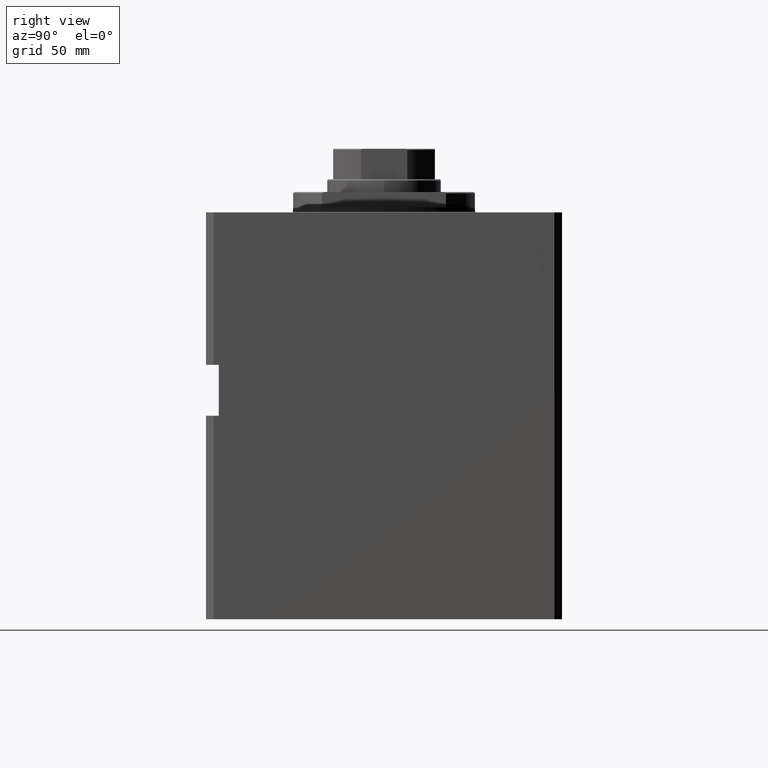
[diagram: clean part render]
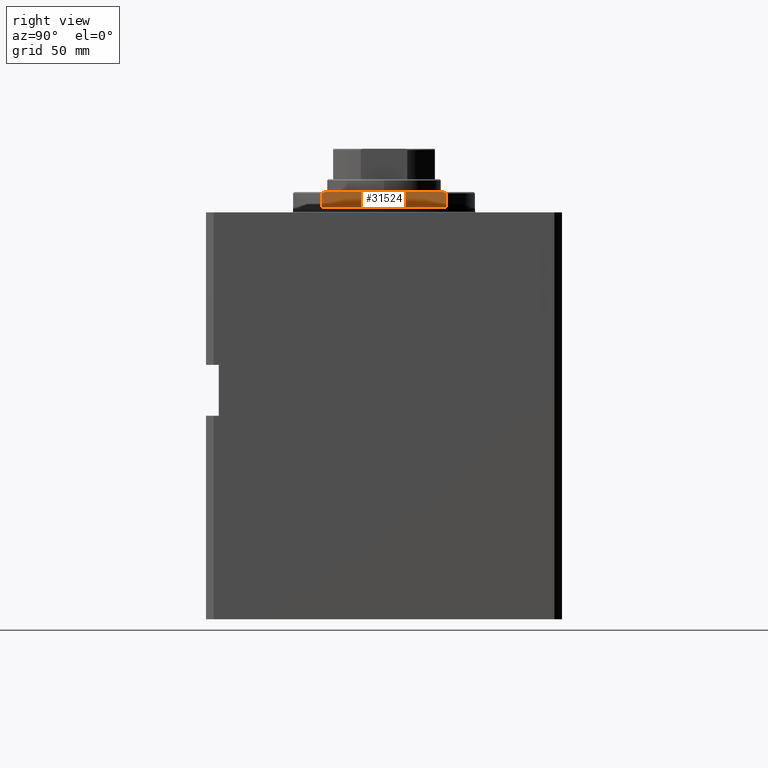
[diagram: same view with one face highlighted and labeled with its STEP entity id]
A machine part, right view. The second image highlights one B-rep face of the part: STEP entity #31524.
In plain terms, the highlighted planar face has unit normal (-1, 0, 0).
Its self-contained STEP definition (entity closure, byte-faithful):
#873 = CARTESIAN_POINT ( 'NONE',  ( -26.50000000000000000, 24.36698586202241046, -7.499999999999968026 ) ) ;
#1922 = VERTEX_POINT ( 'NONE', #5036 ) ;
#2016 = VECTOR ( 'NONE', #3955, 1000.000000000000000 ) ;
#2312 = LINE ( 'NONE', #9555, #36481 ) ;
#2525 = CARTESIAN_POINT ( 'NONE',  ( -26.50000000000000000, -36.36963018783666257, -8.000000000000000000 ) ) ;
#3313 = ORIENTED_EDGE ( 'NONE', *, *, #17429, .F. ) ;
#3955 = DIRECTION ( 'NONE',  ( -0.000000000000000000, -1.000000000000000000, -0.000000000000000000 ) ) ;
#5036 = CARTESIAN_POINT ( 'NONE',  ( -26.50000000000000000, -24.36698586202241046, -7.499999999999968026 ) ) ;
#5912 = CARTESIAN_POINT ( 'NONE',  ( -26.50000000000000000, 23.62202362203536765, -8.000000000000000000 ) ) ;
#7954 = EDGE_CURVE ( 'NONE', #45184, #42493, #16802, .T. ) ;
#8593 = EDGE_CURVE ( 'NONE', #24261, #12926, #22673, .T. ) ;
#9051 = LINE ( 'NONE', #27048, #38525 ) ;
#9555 = CARTESIAN_POINT ( 'NONE',  ( -26.50000000000000000, -24.36698586202240691, -8.000000000000000000 ) ) ;
#11268 = CARTESIAN_POINT ( 'NONE',  ( -26.50000000000000000, 24.36698586202241046, -7.499999999999968026 ) ) ;
#11285 = CARTESIAN_POINT ( 'NONE',  ( -26.50000000000000000, -23.87112017329591751, -7.834248883998796487 ) ) ;
#12166 = B_SPLINE_CURVE_WITH_KNOTS ( 'NONE', 3,
 ( #873, #20197, #16005, #5912 ),
 .UNSPECIFIED., .F., .F.,
 ( 4, 4 ),
 ( 0.06640243459006250903, 0.06730321093129180976 ),
 .UNSPECIFIED. ) ;
#12926 = VERTEX_POINT ( 'NONE', #38041 ) ;
#13206 = ORIENTED_EDGE ( 'NONE', *, *, #7954, .T. ) ;
#16005 = CARTESIAN_POINT ( 'NONE',  ( -26.50000000000000000, 23.87103301658672549, -7.834306878867590918 ) ) ;
#16528 = EDGE_CURVE ( 'NONE', #33834, #45184, #12166, .T. ) ;
#16589 = ORIENTED_EDGE ( 'NONE', *, *, #28173, .T. ) ;
#16802 = LINE ( 'NONE', #2525, #25903 ) ;
#17039 = DIRECTION ( 'NONE',  ( -0.000000000000000000, -1.000000000000000000, -0.000000000000000000 ) ) ;
#17429 = EDGE_CURVE ( 'NONE', #12926, #1922, #2312, .T. ) ;
#18093 = CARTESIAN_POINT ( 'NONE',  ( -26.50000000000000000, -24.36698586202241046, -7.499999999999968026 ) ) ;
#20197 = CARTESIAN_POINT ( 'NONE',  ( -26.50000000000000000, 24.11934047884586363, -7.667621431962681200 ) ) ;
#20481 = CARTESIAN_POINT ( 'NONE',  ( -26.50000000000000000, 24.36698586202240691, -2.000000000000000000 ) ) ;
#20802 = AXIS2_PLACEMENT_3D ( 'NONE', #25635, #32632, #32176 ) ;
#21011 = DIRECTION ( 'NONE',  ( 0.000000000000000000, 0.000000000000000000, -1.000000000000000000 ) ) ;
#21665 = PLANE ( 'NONE',  #20802 ) ;
#22673 = LINE ( 'NONE', #36900, #2016 ) ;
#23322 = DIRECTION ( 'NONE',  ( -0.000000000000000000, -0.000000000000000000, 1.000000000000000000 ) ) ;
#24261 = VERTEX_POINT ( 'NONE', #20481 ) ;
#25635 = CARTESIAN_POINT ( 'NONE',  ( -26.50000000000000000, -36.36963018783666257, -2.000000000000000000 ) ) ;
#25903 = VECTOR ( 'NONE', #17039, 1000.000000000000000 ) ;
#26397 = EDGE_CURVE ( 'NONE', #33834, #24261, #9051, .T. ) ;
#27048 = CARTESIAN_POINT ( 'NONE',  ( -26.50000000000000000, 24.36698586202240691, -8.000000000000000000 ) ) ;
#28173 = EDGE_CURVE ( 'NONE', #42493, #1922, #39123, .T. ) ;
#29038 = CARTESIAN_POINT ( 'NONE',  ( -26.50000000000000711, -23.62202362203537476, -8.000000000000000000 ) ) ;
#31524 = ADVANCED_FACE ( 'NONE', ( #32864 ), #21665, .F. ) ;
#32176 = DIRECTION ( 'NONE',  ( 0.000000000000000000, 0.000000000000000000, -1.000000000000000000 ) ) ;
#32632 = DIRECTION ( 'NONE',  ( 1.000000000000000000, 0.000000000000000000, 0.000000000000000000 ) ) ;
#32864 = FACE_OUTER_BOUND ( 'NONE', #36736, .T. ) ;
#33834 = VERTEX_POINT ( 'NONE', #11268 ) ;
#33931 = ORIENTED_EDGE ( 'NONE', *, *, #26397, .F. ) ;
#36481 = VECTOR ( 'NONE', #21011, 1000.000000000000000 ) ;
#36736 = EDGE_LOOP ( 'NONE', ( #45562, #13206, #16589, #3313, #38139, #33931 ) ) ;
#36900 = CARTESIAN_POINT ( 'NONE',  ( -26.50000000000000000, -36.36963018783666257, -2.000000000000000000 ) ) ;
#38041 = CARTESIAN_POINT ( 'NONE',  ( -26.50000000000000000, -24.36698586202240691, -2.000000000000000000 ) ) ;
#38139 = ORIENTED_EDGE ( 'NONE', *, *, #8593, .F. ) ;
#38525 = VECTOR ( 'NONE', #23322, 1000.000000000000000 ) ;
#38854 = CARTESIAN_POINT ( 'NONE',  ( -26.50000000000000000, -24.11942542714780657, -7.667563933794023789 ) ) ;
#39123 = B_SPLINE_CURVE_WITH_KNOTS ( 'NONE', 3,
 ( #29038, #11285, #38854, #18093 ),
 .UNSPECIFIED., .F., .F.,
 ( 4, 4 ),
 ( 0.1181807197803961679, 0.1190701102149114843 ),
 .UNSPECIFIED. ) ;
#42493 = VERTEX_POINT ( 'NONE', #44655 ) ;
#43577 = CARTESIAN_POINT ( 'NONE',  ( -26.50000000000000000, 23.62202362203536765, -8.000000000000000000 ) ) ;
#44655 = CARTESIAN_POINT ( 'NONE',  ( -26.50000000000000711, -23.62202362203537476, -8.000000000000000000 ) ) ;
#45184 = VERTEX_POINT ( 'NONE', #43577 ) ;
#45562 = ORIENTED_EDGE ( 'NONE', *, *, #16528, .T. ) ;